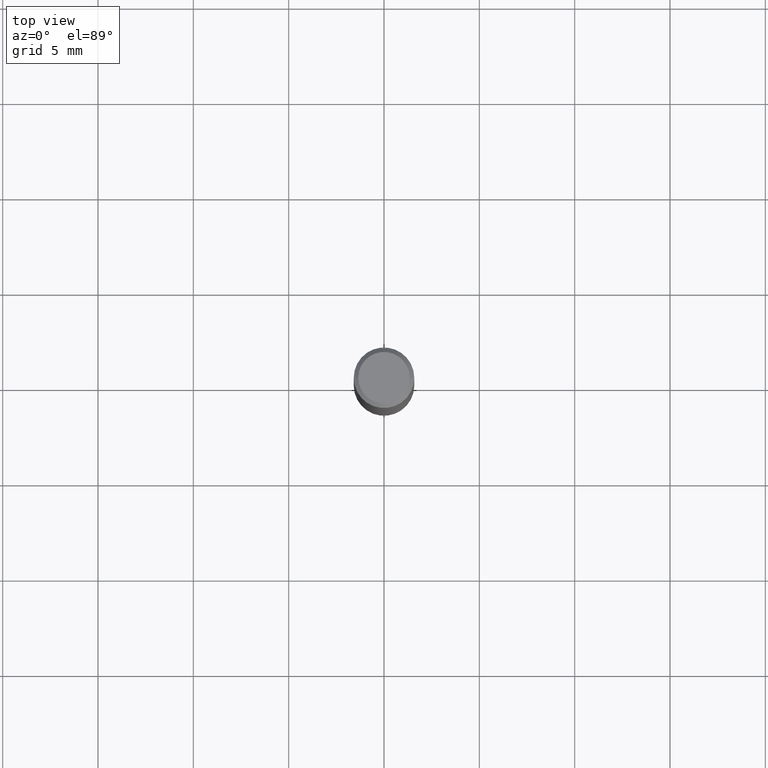
[diagram: clean part render]
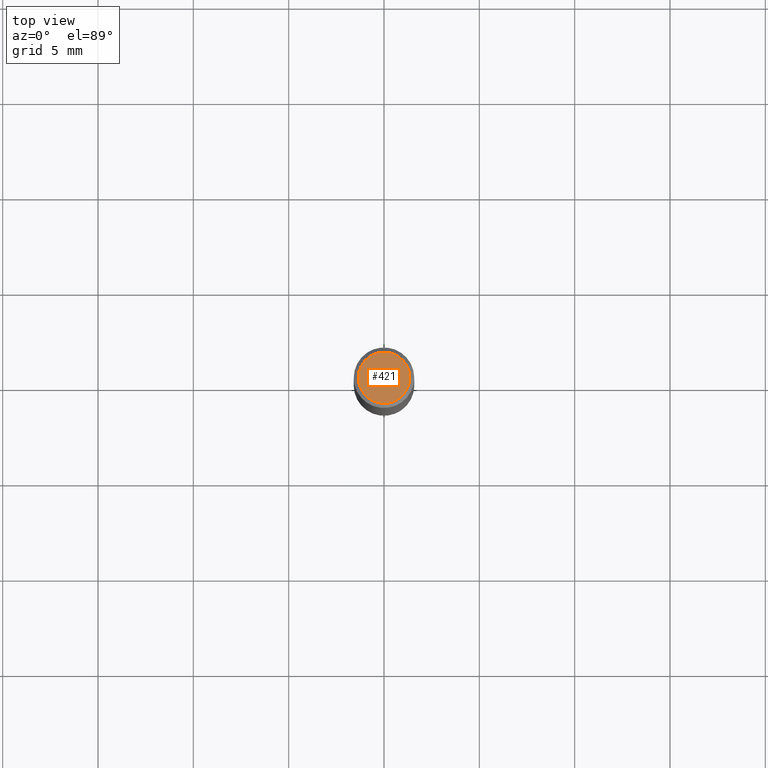
[diagram: same view with one face highlighted and labeled with its STEP entity id]
A machine part, top view. The second image highlights one B-rep face of the part: STEP entity #421.
In plain terms, the highlighted planar face has unit normal (0, -0, -1).
Its self-contained STEP definition (entity closure, byte-faithful):
#44 = DIRECTION ( 'NONE',  ( 1.000000000000000000, -6.982962677686266711E-15, 4.875930095424100059E-29 ) ) ;
#71 = DIRECTION ( 'NONE',  ( -1.000000000000000000, 6.982962677686265922E-15, -4.876176775795935793E-29 ) ) ;
#86 = EDGE_CURVE ( 'NONE', #237, #486, #138, .T. ) ;
#138 = CIRCLE ( 'NONE', #445, 0.05312499999999999861 ) ;
#159 = AXIS2_PLACEMENT_3D ( 'NONE', #216, #527, #442 ) ;
#162 = EDGE_LOOP ( 'NONE', ( #495, #399 ) ) ;
#216 = CARTESIAN_POINT ( 'NONE',  ( 1.415359278996747967E-46, -2.020757941330909984E-32, -5.787680772770392401E-18 ) ) ;
#230 = CARTESIAN_POINT ( 'NONE',  ( 0.05312499999999999861, -4.129888592719939842E-16, -5.787680772767651417E-18 ) ) ;
#237 = VERTEX_POINT ( 'NONE', #336 ) ;
#271 = AXIS2_PLACEMENT_3D ( 'NONE', #434, #487, #71 ) ;
#310 = FACE_OUTER_BOUND ( 'NONE', #162, .T. ) ;
#336 = CARTESIAN_POINT ( 'NONE',  ( -0.05312499999999999861, 3.873362110279099094E-16, -5.787680772773044021E-18 ) ) ;
#381 = EDGE_CURVE ( 'NONE', #486, #237, #415, .T. ) ;
#399 = ORIENTED_EDGE ( 'NONE', *, *, #381, .T. ) ;
#415 = CIRCLE ( 'NONE', #159, 0.05312499999999999861 ) ;
#416 = DIRECTION ( 'NONE',  ( -2.445468806185136597E-29, 3.491481338843145583E-15, 1.000000000000000000 ) ) ;
#421 = ADVANCED_FACE ( 'NONE', ( #310 ), #479, .F. ) ;
#434 = CARTESIAN_POINT ( 'NONE',  ( 7.076796394983739835E-47, -1.010378970665454992E-32, -2.893840386385196200E-18 ) ) ;
#442 = DIRECTION ( 'NONE',  ( 1.000000000000000000, -6.982962677686266711E-15, 4.875930095424100059E-29 ) ) ;
#445 = AXIS2_PLACEMENT_3D ( 'NONE', #589, #416, #44 ) ;
#479 = PLANE ( 'NONE',  #271 ) ;
#486 = VERTEX_POINT ( 'NONE', #230 ) ;
#487 = DIRECTION ( 'NONE',  ( 2.438088387897960049E-29, -3.491481338843145188E-15, -1.000000000000000000 ) ) ;
#495 = ORIENTED_EDGE ( 'NONE', *, *, #86, .T. ) ;
#527 = DIRECTION ( 'NONE',  ( -2.445468806185136597E-29, 3.491481338843145583E-15, 1.000000000000000000 ) ) ;
#589 = CARTESIAN_POINT ( 'NONE',  ( 1.415359278996747967E-46, -2.020757941330909984E-32, -5.787680772770392401E-18 ) ) ;